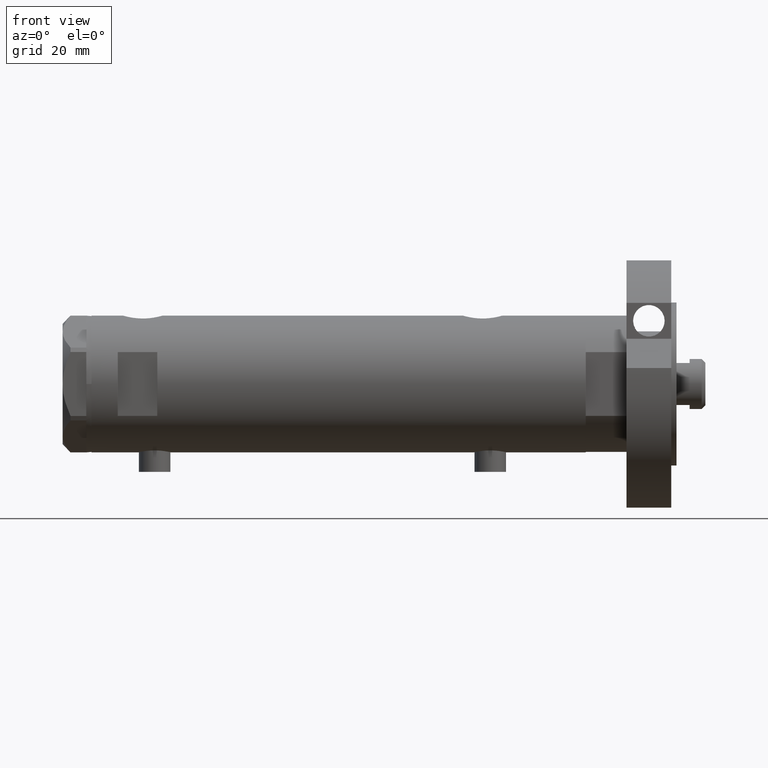
[diagram: clean part render]
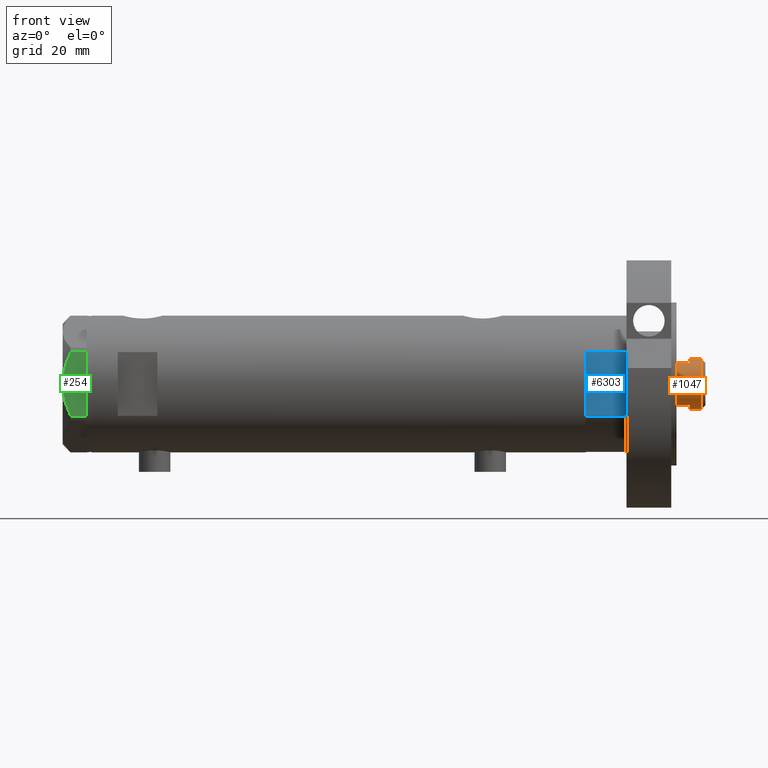
[diagram: same view with three faces highlighted in distinct colors, each labeled with its STEP entity id]
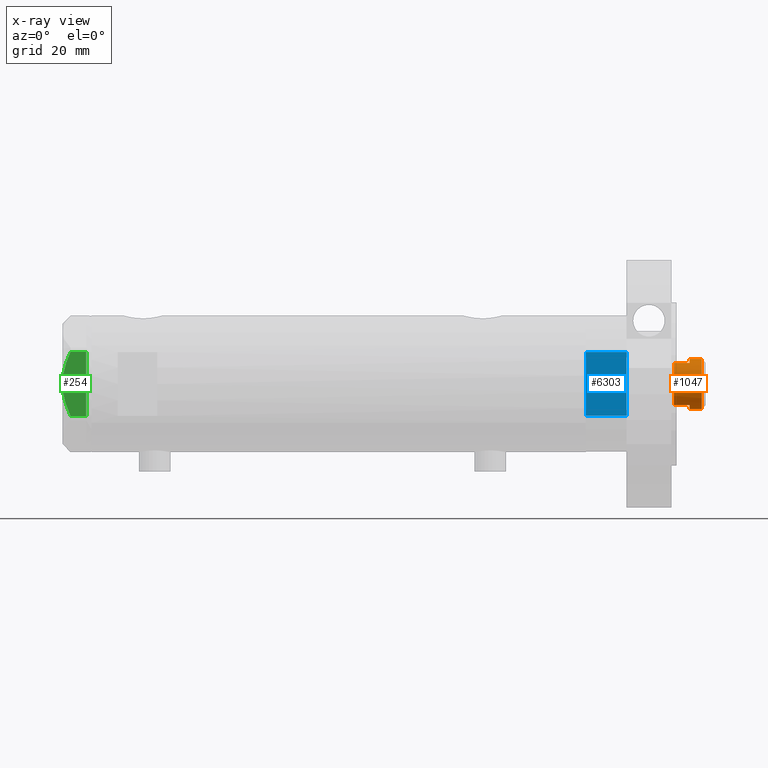
[diagram: x-ray of the same camera — body ghosted, the three highlighted faces saturated]
A machine part, front view with three faces highlighted in distinct colors.
The next image is the same camera in x-ray (body ghosted, the three faces saturated) — at least one of them is partly hidden behind the body in this view.
Their STEP definitions:

[orange] entity #1047 — the highlighted cylindrical surface (edge-blend (fillet) strip) has radius 9.5 mm, axis along (-1, -0, 0).
#27 = DIRECTION ( 'NONE',  ( 1.000000000000000000, 0.000000000000000000, 0.000000000000000000 ) ) ;
#400 = EDGE_CURVE ( 'NONE', #4762, #1731, #6174, .T. ) ;
#482 = ORIENTED_EDGE ( 'NONE', *, *, #400, .T. ) ;
#497 = DIRECTION ( 'NONE',  ( 0.000000000000000000, 0.000000000000000000, 1.000000000000000000 ) ) ;
#535 = VECTOR ( 'NONE', #4822, 1000.000000000000000 ) ;
#580 = VERTEX_POINT ( 'NONE', #5444 ) ;
#638 = CARTESIAN_POINT ( 'NONE',  ( 0.000000000000000000, 0.000000000000000000, 203.6000000000000227 ) ) ;
#672 = LINE ( 'NONE', #4083, #4401 ) ;
#811 = EDGE_CURVE ( 'NONE', #4047, #580, #5543, .T. ) ;
#889 = DIRECTION ( 'NONE',  ( 0.000000000000000000, 0.000000000000000000, 1.000000000000000000 ) ) ;
#898 = DIRECTION ( 'NONE',  ( -0.000000000000000000, -0.000000000000000000, -1.000000000000000000 ) ) ;
#942 = VERTEX_POINT ( 'NONE', #1170 ) ;
#946 = EDGE_CURVE ( 'NONE', #4047, #1731, #672, .T. ) ;
#1028 = ORIENTED_EDGE ( 'NONE', *, *, #811, .T. ) ;
#1047 = ADVANCED_FACE ( 'NONE', ( #3124 ), #5138, .T. ) ;
#1170 = CARTESIAN_POINT ( 'NONE',  ( -9.500000000000001776, 0.000000000000000000, 208.2000000000000455 ) ) ;
#1240 = ORIENTED_EDGE ( 'NONE', *, *, #2167, .T. ) ;
#1326 = EDGE_CURVE ( 'NONE', #942, #2384, #2791, .T. ) ;
#1731 = VERTEX_POINT ( 'NONE', #3792 ) ;
#1905 = CARTESIAN_POINT ( 'NONE',  ( -9.500000000000001776, 0.000000000000000000, 203.6000000000000227 ) ) ;
#1981 = CARTESIAN_POINT ( 'NONE',  ( 9.500000000000001776, 1.163414459189985682E-15, 208.2000000000000455 ) ) ;
#2099 = VECTOR ( 'NONE', #4407, 1000.000000000000000 ) ;
#2167 = EDGE_CURVE ( 'NONE', #3605, #942, #4317, .T. ) ;
#2384 = VERTEX_POINT ( 'NONE', #5788 ) ;
#2500 = DIRECTION ( 'NONE',  ( 1.000000000000000000, 0.000000000000000000, 0.000000000000000000 ) ) ;
#2602 = AXIS2_PLACEMENT_3D ( 'NONE', #4996, #497, #2500 ) ;
#2628 = DIRECTION ( 'NONE',  ( 1.000000000000000000, 0.000000000000000000, 0.000000000000000000 ) ) ;
#2638 = DIRECTION ( 'NONE',  ( -0.000000000000000000, -0.000000000000000000, -1.000000000000000000 ) ) ;
#2791 = LINE ( 'NONE', #1905, #3357 ) ;
#2813 = CARTESIAN_POINT ( 'NONE',  ( 0.000000000000000000, 0.000000000000000000, 203.6000000000000227 ) ) ;
#2900 = CARTESIAN_POINT ( 'NONE',  ( 9.500000000000001776, 1.163414459189985682E-15, 203.6000000000000227 ) ) ;
#2947 = CARTESIAN_POINT ( 'NONE',  ( -7.982950582334829015, -5.150000000000001243, 203.6000000000000227 ) ) ;
#2974 = EDGE_CURVE ( 'NONE', #6220, #4762, #5942, .T. ) ;
#3124 = FACE_OUTER_BOUND ( 'NONE', #3855, .T. ) ;
#3153 = ORIENTED_EDGE ( 'NONE', *, *, #946, .F. ) ;
#3357 = VECTOR ( 'NONE', #898, 1000.000000000000000 ) ;
#3470 = CIRCLE ( 'NONE', #4619, 9.500000000000000000 ) ;
#3503 = CARTESIAN_POINT ( 'NONE',  ( 0.000000000000000000, 0.000000000000000000, 203.6000000000000227 ) ) ;
#3605 = VERTEX_POINT ( 'NONE', #1981 ) ;
#3747 = LINE ( 'NONE', #2900, #2099 ) ;
#3770 = AXIS2_PLACEMENT_3D ( 'NONE', #638, #2638, #4646 ) ;
#3792 = CARTESIAN_POINT ( 'NONE',  ( 7.982950582334834344, -5.150000000000009237, 197.6000000000000227 ) ) ;
#3855 = EDGE_LOOP ( 'NONE', ( #4123, #1240, #5618, #3972, #4672, #482, #3153, #1028 ) ) ;
#3972 = ORIENTED_EDGE ( 'NONE', *, *, #5337, .T. ) ;
#4047 = VERTEX_POINT ( 'NONE', #5636 ) ;
#4078 = AXIS2_PLACEMENT_3D ( 'NONE', #2813, #889, #5909 ) ;
#4083 = CARTESIAN_POINT ( 'NONE',  ( 7.982950582334832568, -5.149999999999997691, 203.6000000000000227 ) ) ;
#4123 = ORIENTED_EDGE ( 'NONE', *, *, #4816, .F. ) ;
#4247 = CARTESIAN_POINT ( 'NONE',  ( 0.000000000000000000, 0.000000000000000000, 208.2000000000000455 ) ) ;
#4317 = CIRCLE ( 'NONE', #4620, 9.500000000000001776 ) ;
#4401 = VECTOR ( 'NONE', #6154, 1000.000000000000000 ) ;
#4407 = DIRECTION ( 'NONE',  ( -0.000000000000000000, -0.000000000000000000, -1.000000000000000000 ) ) ;
#4619 = AXIS2_PLACEMENT_3D ( 'NONE', #3503, #5975, #27 ) ;
#4620 = AXIS2_PLACEMENT_3D ( 'NONE', #4247, #6252, #2628 ) ;
#4646 = DIRECTION ( 'NONE',  ( -1.000000000000000000, 0.000000000000000000, 0.000000000000000000 ) ) ;
#4672 = ORIENTED_EDGE ( 'NONE', *, *, #2974, .T. ) ;
#4701 = CARTESIAN_POINT ( 'NONE',  ( -7.982950582334825462, -5.150000000000019007, 197.6000000000000227 ) ) ;
#4762 = VERTEX_POINT ( 'NONE', #4701 ) ;
#4816 = EDGE_CURVE ( 'NONE', #3605, #580, #3747, .T. ) ;
#4822 = DIRECTION ( 'NONE',  ( -0.000000000000000000, -0.000000000000000000, -1.000000000000000000 ) ) ;
#4996 = CARTESIAN_POINT ( 'NONE',  ( 0.000000000000000000, 0.000000000000000000, 197.6000000000000227 ) ) ;
#5138 = CYLINDRICAL_SURFACE ( 'NONE', #3770, 9.500000000000001776 ) ;
#5337 = EDGE_CURVE ( 'NONE', #2384, #6220, #3470, .T. ) ;
#5444 = CARTESIAN_POINT ( 'NONE',  ( 9.500000000000000000, 1.163414459189985485E-15, 203.6000000000000227 ) ) ;
#5543 = CIRCLE ( 'NONE', #4078, 9.500000000000000000 ) ;
#5618 = ORIENTED_EDGE ( 'NONE', *, *, #1326, .T. ) ;
#5636 = CARTESIAN_POINT ( 'NONE',  ( 7.982950582334832568, -5.149999999999997691, 203.6000000000000227 ) ) ;
#5742 = CARTESIAN_POINT ( 'NONE',  ( -7.982950582334825462, -5.150000000000003020, 203.6000000000000227 ) ) ;
#5788 = CARTESIAN_POINT ( 'NONE',  ( -9.500000000000000000, 0.000000000000000000, 203.6000000000000227 ) ) ;
#5909 = DIRECTION ( 'NONE',  ( 1.000000000000000000, 0.000000000000000000, 0.000000000000000000 ) ) ;
#5942 = LINE ( 'NONE', #2947, #535 ) ;
#5975 = DIRECTION ( 'NONE',  ( 0.000000000000000000, 0.000000000000000000, 1.000000000000000000 ) ) ;
#6154 = DIRECTION ( 'NONE',  ( -0.000000000000000000, -0.000000000000000000, -1.000000000000000000 ) ) ;
#6174 = CIRCLE ( 'NONE', #2602, 9.500000000000001776 ) ;
#6220 = VERTEX_POINT ( 'NONE', #5742 ) ;
#6252 = DIRECTION ( 'NONE',  ( 0.000000000000000000, 0.000000000000000000, -1.000000000000000000 ) ) ;

[blue] entity #6303 — the highlighted planar face has unit normal (-0, 1, 0).
#11 = ORIENTED_EDGE ( 'NONE', *, *, #1114, .F. ) ;
#191 = ORIENTED_EDGE ( 'NONE', *, *, #6496, .T. ) ;
#819 = ORIENTED_EDGE ( 'NONE', *, *, #1690, .F. ) ;
#921 = FACE_OUTER_BOUND ( 'NONE', #2713, .T. ) ;
#1006 = DIRECTION ( 'NONE',  ( -0.000000000000000000, -0.000000000000000000, 1.000000000000000000 ) ) ;
#1103 = CARTESIAN_POINT ( 'NONE',  ( 12.12435565298215323, -22.99999999999999645, 15.50000000000000000 ) ) ;
#1114 = EDGE_CURVE ( 'NONE', #2264, #4196, #2877, .T. ) ;
#1690 = EDGE_CURVE ( 'NONE', #2665, #2264, #2741, .T. ) ;
#1809 = VECTOR ( 'NONE', #5727, 1000.000000000000000 ) ;
#2264 = VERTEX_POINT ( 'NONE', #4277 ) ;
#2326 = ORIENTED_EDGE ( 'NONE', *, *, #3642, .T. ) ;
#2428 = PLANE ( 'NONE',  #2435 ) ;
#2435 = AXIS2_PLACEMENT_3D ( 'NONE', #6444, #5877, #4490 ) ;
#2665 = VERTEX_POINT ( 'NONE', #3532 ) ;
#2713 = EDGE_LOOP ( 'NONE', ( #191, #11, #819, #2326 ) ) ;
#2741 = LINE ( 'NONE', #3223, #4413 ) ;
#2743 = CARTESIAN_POINT ( 'NONE',  ( -12.12435565298215145, -22.99999999999999645, 0.000000000000000000 ) ) ;
#2877 = LINE ( 'NONE', #2743, #5973 ) ;
#3090 = LINE ( 'NONE', #5136, #1809 ) ;
#3223 = CARTESIAN_POINT ( 'NONE',  ( -12.12435565298215145, -22.99999999999999645, 0.000000000000000000 ) ) ;
#3532 = CARTESIAN_POINT ( 'NONE',  ( 12.12435565298215323, -22.99999999999999645, 0.000000000000000000 ) ) ;
#3591 = LINE ( 'NONE', #5521, #6215 ) ;
#3642 = EDGE_CURVE ( 'NONE', #2665, #5767, #3591, .T. ) ;
#3751 = DIRECTION ( 'NONE',  ( -1.000000000000000000, -0.000000000000000000, -0.000000000000000000 ) ) ;
#3752 = DIRECTION ( 'NONE',  ( -0.000000000000000000, -0.000000000000000000, 1.000000000000000000 ) ) ;
#4196 = VERTEX_POINT ( 'NONE', #5118 ) ;
#4277 = CARTESIAN_POINT ( 'NONE',  ( -12.12435565298215501, -22.99999999999999645, 0.000000000000000000 ) ) ;
#4413 = VECTOR ( 'NONE', #3751, 1000.000000000000000 ) ;
#4490 = DIRECTION ( 'NONE',  ( 0.000000000000000000, -0.000000000000000000, 1.000000000000000000 ) ) ;
#5118 = CARTESIAN_POINT ( 'NONE',  ( -12.12435565298215323, -22.99999999999999645, 15.50000000000000000 ) ) ;
#5136 = CARTESIAN_POINT ( 'NONE',  ( -12.12435565298215145, -22.99999999999999645, 15.50000000000000000 ) ) ;
#5521 = CARTESIAN_POINT ( 'NONE',  ( 12.12435565298215323, -22.99999999999999645, 0.000000000000000000 ) ) ;
#5727 = DIRECTION ( 'NONE',  ( -1.000000000000000000, -0.000000000000000000, -0.000000000000000000 ) ) ;
#5767 = VERTEX_POINT ( 'NONE', #1103 ) ;
#5877 = DIRECTION ( 'NONE',  ( -0.000000000000000000, 1.000000000000000000, 0.000000000000000000 ) ) ;
#5973 = VECTOR ( 'NONE', #3752, 1000.000000000000000 ) ;
#6215 = VECTOR ( 'NONE', #1006, 1000.000000000000000 ) ;
#6303 = ADVANCED_FACE ( 'NONE', ( #921 ), #2428, .F. ) ;
#6444 = CARTESIAN_POINT ( 'NONE',  ( -12.12435565298215145, -22.99999999999999645, 0.000000000000000000 ) ) ;
#6496 = EDGE_CURVE ( 'NONE', #5767, #4196, #3090, .T. ) ;

[green] entity #254 — the highlighted planar face has unit normal (-0, 1, -0).
#85 = CARTESIAN_POINT ( 'NONE',  ( -22.99999999999991829, -8.252113629125268801, 7.581642062680223226 ) ) ;
#171 = LINE ( 'NONE', #1256, #5785 ) ;
#183 = ORIENTED_EDGE ( 'NONE', *, *, #2374, .T. ) ;
#187 = CARTESIAN_POINT ( 'NONE',  ( -22.99999999999993960, -2.643615312305158671, 8.854304560636265364 ) ) ;
#210 = PLANE ( 'NONE',  #2085 ) ;
#254 = ADVANCED_FACE ( 'NONE', ( #4704 ), #210, .F. ) ;
#455 = CARTESIAN_POINT ( 'NONE',  ( -22.99999999999999289, 12.15905619136133176, 5.983800287807616414 ) ) ;
#466 = VERTEX_POINT ( 'NONE', #4925 ) ;
#476 = VERTEX_POINT ( 'NONE', #3444 ) ;
#613 = CARTESIAN_POINT ( 'NONE',  ( -22.99999999999992184, -7.253003311474388148, 7.903276810347638737 ) ) ;
#682 = CARTESIAN_POINT ( 'NONE',  ( -22.99999999999992895, -5.228918809624124364, 8.433337033849854336 ) ) ;
#774 = CARTESIAN_POINT ( 'NONE',  ( -22.99999999999999645, 13.27905619136132032, 9.000000000000000000 ) ) ;
#1029 = CARTESIAN_POINT ( 'NONE',  ( -22.99999999999998934, 11.20825071633916359, 6.428173306378450746 ) ) ;
#1059 = CARTESIAN_POINT ( 'NONE',  ( -22.99999999999990763, -12.15905619136147386, 9.000000000000000000 ) ) ;
#1256 = CARTESIAN_POINT ( 'NONE',  ( -22.99999999999999645, 13.27905619136132032, 0.000000000000000000 ) ) ;
#1532 = EDGE_CURVE ( 'NONE', #476, #6013, #3772, .T. ) ;
#1583 = DIRECTION ( 'NONE',  ( 0.000000000000000000, 0.000000000000000000, 1.000000000000000000 ) ) ;
#1810 = CARTESIAN_POINT ( 'NONE',  ( -22.99999999999999645, 13.27905619136132032, 0.000000000000000000 ) ) ;
#1869 = ORIENTED_EDGE ( 'NONE', *, *, #5611, .T. ) ;
#1975 = DIRECTION ( 'NONE',  ( 1.000000000000000000, 3.527173405730720141E-15, -0.000000000000000000 ) ) ;
#2006 = EDGE_CURVE ( 'NONE', #6013, #4125, #4017, .T. ) ;
#2055 = CARTESIAN_POINT ( 'NONE',  ( -22.99999999999990763, -12.15905619136147386, 0.000000000000000000 ) ) ;
#2085 = AXIS2_PLACEMENT_3D ( 'NONE', #774, #1975, #4381 ) ;
#2090 = CARTESIAN_POINT ( 'NONE',  ( -23.00000000000004619, -8.112498833180673323E-14, 9.000000000000000000 ) ) ;
#2129 = ORIENTED_EDGE ( 'NONE', *, *, #6106, .F. ) ;
#2130 = VERTEX_POINT ( 'NONE', #2695 ) ;
#2374 = EDGE_CURVE ( 'NONE', #2130, #476, #171, .T. ) ;
#2388 = LINE ( 'NONE', #4392, #5997 ) ;
#2449 = EDGE_CURVE ( 'NONE', #5608, #2130, #5228, .T. ) ;
#2513 = VECTOR ( 'NONE', #6247, 1000.000000000000000 ) ;
#2552 = CARTESIAN_POINT ( 'NONE',  ( -22.99999999999990763, -12.15905619136147564, 5.983800287807627072 ) ) ;
#2626 = VECTOR ( 'NONE', #5885, 1000.000000000000000 ) ;
#2678 = CARTESIAN_POINT ( 'NONE',  ( -22.99999999999991829, -9.734726261263297431, 7.028924700095662281 ) ) ;
#2695 = CARTESIAN_POINT ( 'NONE',  ( -22.99999999999999289, 12.12435565298215856, 0.000000000000000000 ) ) ;
#2725 = CARTESIAN_POINT ( 'NONE',  ( -22.99999999999999645, 13.27905619136132032, 0.000000000000000000 ) ) ;
#2763 = DIRECTION ( 'NONE',  ( 3.527173405730720141E-15, -1.000000000000000000, 0.000000000000000000 ) ) ;
#2944 = VECTOR ( 'NONE', #1583, 1000.000000000000000 ) ;
#2945 = CARTESIAN_POINT ( 'NONE',  ( -22.99999999999999289, 12.15905619136133176, 0.000000000000000000 ) ) ;
#2976 = CARTESIAN_POINT ( 'NONE',  ( -22.99999999999998224, 8.246028007352361300, 7.571131808646907935 ) ) ;
#3080 = B_SPLINE_CURVE_WITH_KNOTS ( 'NONE', 3,
 ( #455, #1029, #6085, #5468, #2976, #3988, #4077, #4455, #5996, #4949 ),
 .UNSPECIFIED., .F., .F.,
 ( 4, 2, 2, 2, 4 ),
 ( 0.03516523594057416324, 0.03831677594541234300, 0.03989254594783143981, 0.04146831595025052969, 0.04777139595992690307 ),
 .UNSPECIFIED. ) ;
#3099 = CARTESIAN_POINT ( 'NONE',  ( -22.99999999999993960, -2.119709279061923191, 8.908535212173198659 ) ) ;
#3444 = CARTESIAN_POINT ( 'NONE',  ( -22.99999999999990763, -12.12435565298232021, 0.000000000000000000 ) ) ;
#3544 = ORIENTED_EDGE ( 'NONE', *, *, #2006, .T. ) ;
#3564 = CARTESIAN_POINT ( 'NONE',  ( -22.99999999999995737, -0.5295934231897764244, 9.000000000000092371 ) ) ;
#3601 = CARTESIAN_POINT ( 'NONE',  ( -22.99999999999995026, -1.063773509315737442, 8.981438083606830602 ) ) ;
#3641 = EDGE_CURVE ( 'NONE', #4217, #466, #3080, .T. ) ;
#3756 = ORIENTED_EDGE ( 'NONE', *, *, #2449, .T. ) ;
#3772 = LINE ( 'NONE', #1810, #2513 ) ;
#3988 = CARTESIAN_POINT ( 'NONE',  ( -22.99999999999996803, 7.239756182922199024, 7.892186063422847120 ) ) ;
#4017 = LINE ( 'NONE', #1059, #2944 ) ;
#4031 = CARTESIAN_POINT ( 'NONE',  ( -22.99999999999991118, -11.20155944044816287, 6.421102682632757741 ) ) ;
#4049 = ORIENTED_EDGE ( 'NONE', *, *, #3641, .F. ) ;
#4077 = CARTESIAN_POINT ( 'NONE',  ( -22.99999999999997158, 6.734330413511419700, 8.039389741252668031 ) ) ;
#4125 = VERTEX_POINT ( 'NONE', #6039 ) ;
#4217 = VERTEX_POINT ( 'NONE', #4589 ) ;
#4381 = DIRECTION ( 'NONE',  ( -3.527173405730720141E-15, 1.000000000000000000, 0.000000000000000000 ) ) ;
#4392 = CARTESIAN_POINT ( 'NONE',  ( -22.99999999999999289, 12.15905619136133176, 9.000000000000000000 ) ) ;
#4455 = CARTESIAN_POINT ( 'NONE',  ( -22.99999999999996803, 4.194757081058972936, 8.703000351525203016 ) ) ;
#4589 = CARTESIAN_POINT ( 'NONE',  ( -22.99999999999999289, 12.15905619136133176, 5.983800287807616414 ) ) ;
#4617 = CARTESIAN_POINT ( 'NONE',  ( -22.99999999999990763, -11.68282849742335827, 6.206372352695425754 ) ) ;
#4683 = CARTESIAN_POINT ( 'NONE',  ( -22.99999999999991118, -10.22738952213794761, 6.832470313674783746 ) ) ;
#4704 = FACE_OUTER_BOUND ( 'NONE', #4946, .T. ) ;
#4925 = CARTESIAN_POINT ( 'NONE',  ( -23.00000000000004619, -8.112498833180673323E-14, 9.000000000000000000 ) ) ;
#4946 = EDGE_LOOP ( 'NONE', ( #4049, #1869, #3756, #183, #5795, #3544, #2129 ) ) ;
#4949 = CARTESIAN_POINT ( 'NONE',  ( -23.00000000000004619, -8.112498833180673323E-14, 9.000000000000000000 ) ) ;
#5008 = DIRECTION ( 'NONE',  ( 0.000000000000000000, 0.000000000000000000, -1.000000000000000000 ) ) ;
#5228 = LINE ( 'NONE', #2725, #2626 ) ;
#5468 = CARTESIAN_POINT ( 'NONE',  ( -22.99999999999997513, 8.748091966971378142, 7.396818978284571244 ) ) ;
#5601 = CARTESIAN_POINT ( 'NONE',  ( -22.99999999999993250, -4.203926054641964782, 8.641681223122507305 ) ) ;
#5608 = VERTEX_POINT ( 'NONE', #2945 ) ;
#5611 = EDGE_CURVE ( 'NONE', #4217, #5608, #2388, .T. ) ;
#5785 = VECTOR ( 'NONE', #2763, 1000.000000000000000 ) ;
#5795 = ORIENTED_EDGE ( 'NONE', *, *, #1532, .T. ) ;
#5885 = DIRECTION ( 'NONE',  ( 3.527173405730720141E-15, -1.000000000000000000, 0.000000000000000000 ) ) ;
#5996 = CARTESIAN_POINT ( 'NONE',  ( -22.99999999999995381, 2.122900714018063795, 9.000000000000092371 ) ) ;
#5997 = VECTOR ( 'NONE', #5008, 1000.000000000000000 ) ;
#6013 = VERTEX_POINT ( 'NONE', #2055 ) ;
#6039 = CARTESIAN_POINT ( 'NONE',  ( -22.99999999999990763, -12.15905619136147564, 5.983800287807627072 ) ) ;
#6085 = CARTESIAN_POINT ( 'NONE',  ( -22.99999999999998579, 10.23890159976122050, 6.840812428290914404 ) ) ;
#6086 = B_SPLINE_CURVE_WITH_KNOTS ( 'NONE', 3,
 ( #2090, #3564, #3601, #3099, #187, #5601, #682, #613, #85, #2678, #4683, #4031, #4617, #2552 ),
 .UNSPECIFIED., .F., .F.,
 ( 4, 2, 2, 2, 2, 2, 4 ),
 ( 0.04777139595992690307, 0.04934380568070229761, 0.05091621540147769215, 0.05406103484302848122, 0.05720585428457927030, 0.05877826400535466483, 0.06035067372613005937 ),
 .UNSPECIFIED. ) ;
#6106 = EDGE_CURVE ( 'NONE', #466, #4125, #6086, .T. ) ;
#6247 = DIRECTION ( 'NONE',  ( 3.527173405730720141E-15, -1.000000000000000000, 0.000000000000000000 ) ) ;